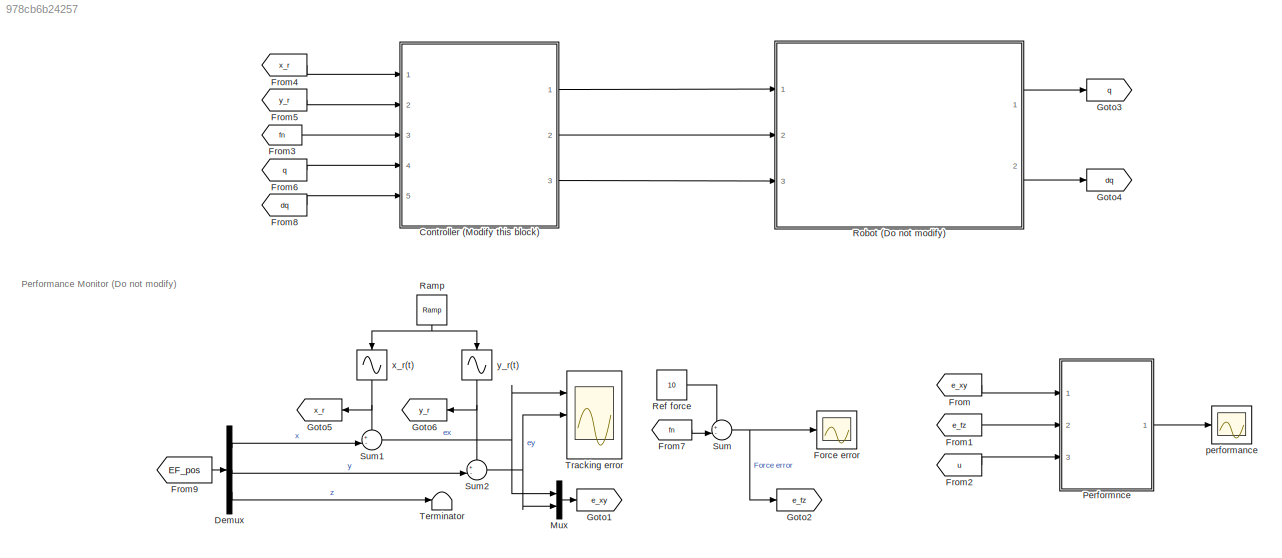
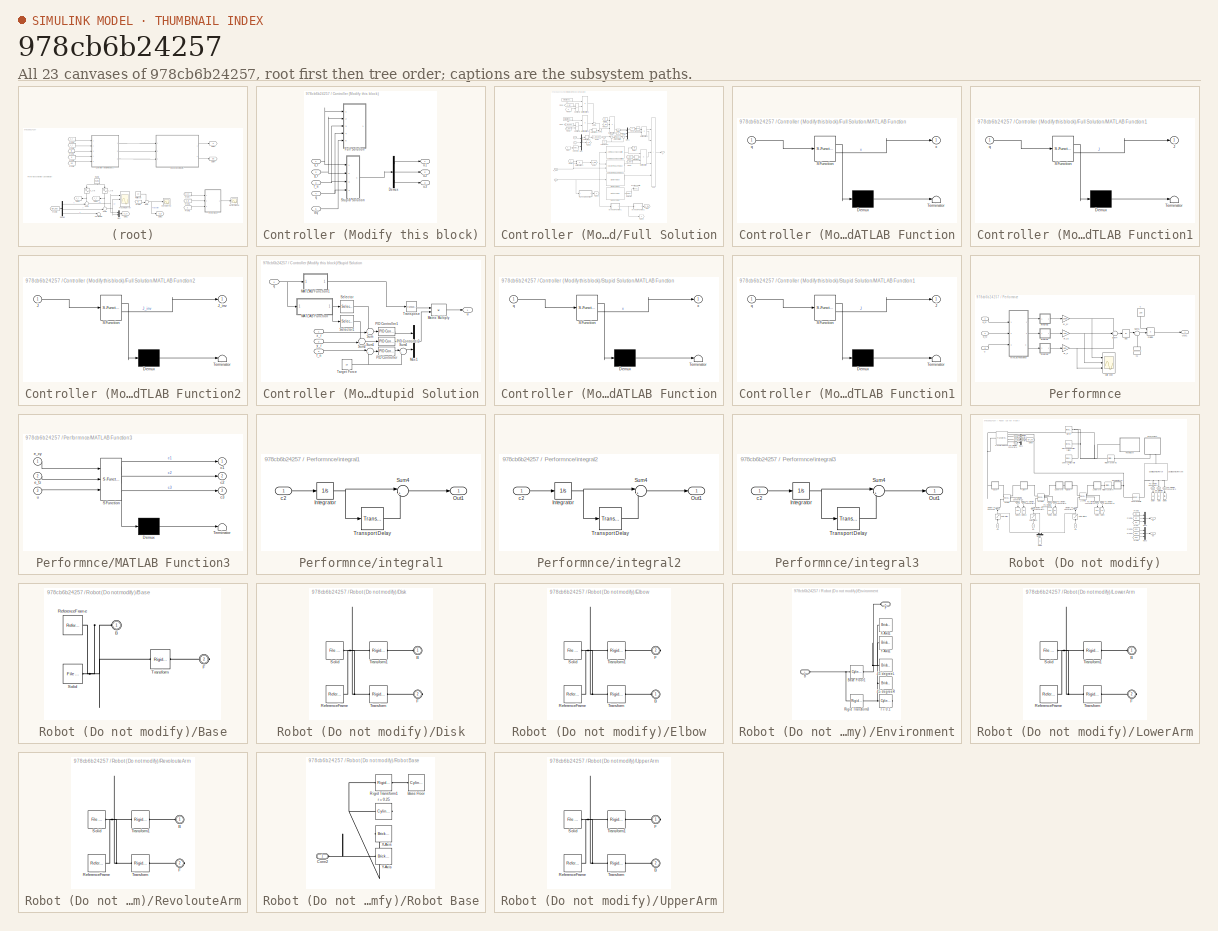
[diagram: thumbnail index - all 23 canvases of the model, root first then tree order]
MODEL slx_978cb6b24257
KIND model
CONFIG AbsTol = auto
CONFIG EnableMultiTasking = off
CONFIG FixedStep = auto
CONFIG InitFcn = QArm_DataFile
CONFIG MaxStep = .01
CONFIG MinStep = auto
CONFIG RelTol = 1e-3
CONFIG SampleTimeConstraint = Unconstrained
CONFIG SolverName = VariableStepAuto
CONFIG StartTime = 0.0
CONFIG StopTime = 60
WORKSPACE source: external: MATLAB File  (data not in archive)
BLOCK [SubSystem] Controller (Modify this block)
  Ports = [5, 3]
  RequestExecContextInheritance = off
BLOCK [Demux] Controller (Modify this block)/Demux
  Outputs = 3
  Ports = [1, 3]
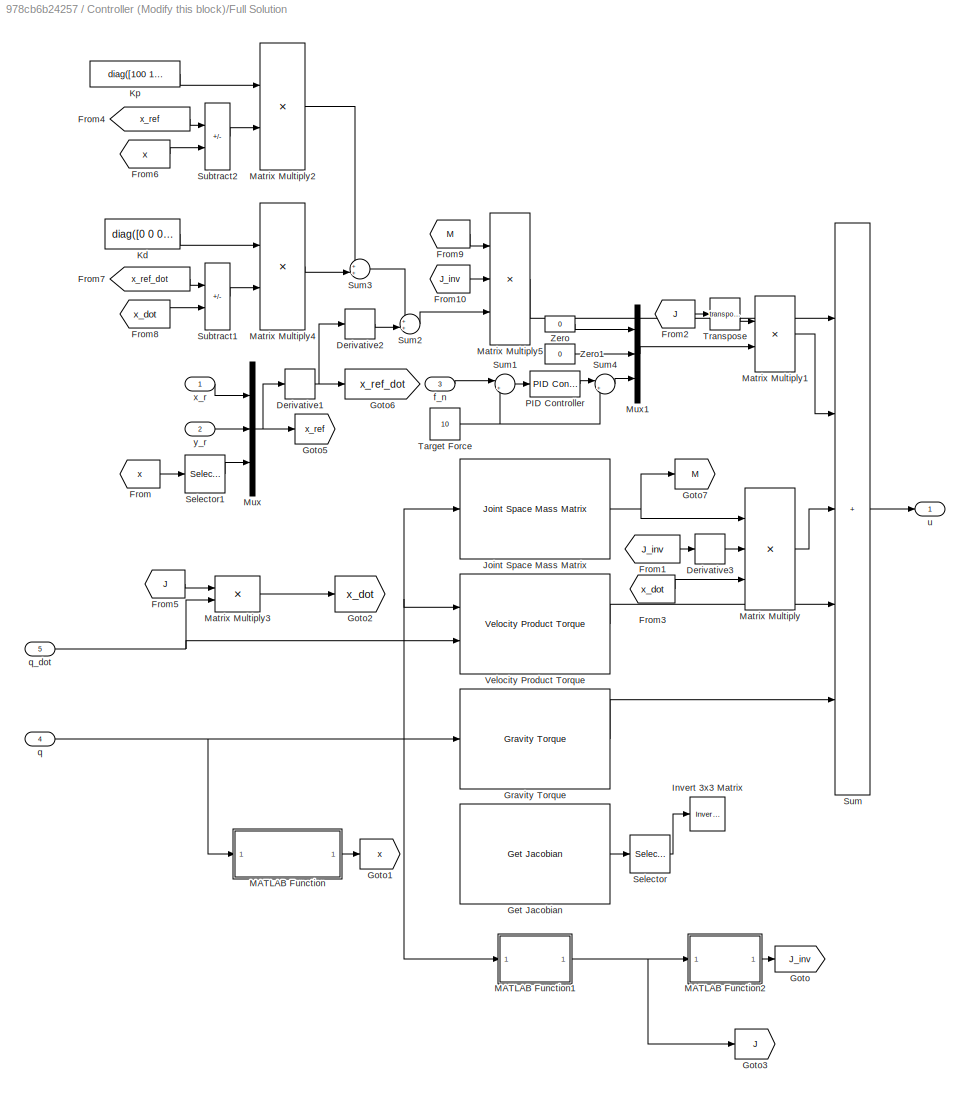
BLOCK [SubSystem] Controller (Modify this block)/Full Solution
  Commented = on
  Ports = [5, 1]
  RequestExecContextInheritance = off
BLOCK [Derivative] Controller (Modify this block)/Full Solution/Derivative1
BLOCK [Derivative] Controller (Modify this block)/Full Solution/Derivative2
BLOCK [Derivative] Controller (Modify this block)/Full Solution/Derivative3
BLOCK [From] Controller (Modify this block)/Full Solution/From
  GotoTag = x
BLOCK [From] Controller (Modify this block)/Full Solution/From1
  GotoTag = J_inv
BLOCK [From] Controller (Modify this block)/Full Solution/From10
  GotoTag = J_inv
BLOCK [From] Controller (Modify this block)/Full Solution/From2
  GotoTag = J
BLOCK [From] Controller (Modify this block)/Full Solution/From3
  GotoTag = x_dot
BLOCK [From] Controller (Modify this block)/Full Solution/From4
  GotoTag = x_ref
BLOCK [From] Controller (Modify this block)/Full Solution/From5
  GotoTag = J
BLOCK [From] Controller (Modify this block)/Full Solution/From6
  GotoTag = x
BLOCK [From] Controller (Modify this block)/Full Solution/From7
  GotoTag = x_ref_dot
BLOCK [From] Controller (Modify this block)/Full Solution/From8
  GotoTag = x_dot
BLOCK [From] Controller (Modify this block)/Full Solution/From9
  GotoTag = M
BLOCK [Reference] Controller (Modify this block)/Full Solution/Get Jacobian  REF=robotmaniplib/Get Jacobian
  Commented = on
  Ports = [1, 1]
  SourceBlock = robotmaniplib/Get Jacobian
  SourceProductBaseCode = RO
  SourceType = Get Jacobian
BLOCK [Goto] Controller (Modify this block)/Full Solution/Goto
  GotoTag = J_inv
BLOCK [Goto] Controller (Modify this block)/Full Solution/Goto1
  GotoTag = x
BLOCK [Goto] Controller (Modify this block)/Full Solution/Goto2
  GotoTag = x_dot
BLOCK [Goto] Controller (Modify this block)/Full Solution/Goto3
  GotoTag = J
BLOCK [Goto] Controller (Modify this block)/Full Solution/Goto5
  GotoTag = x_ref
BLOCK [Goto] Controller (Modify this block)/Full Solution/Goto6
  GotoTag = x_ref_dot
BLOCK [Goto] Controller (Modify this block)/Full Solution/Goto7
  GotoTag = M
BLOCK [Reference] Controller (Modify this block)/Full Solution/Gravity Torque  REF=robotmaniplib/Gravity Torque
  Ports = [1, 1]
  SourceBlock = robotmaniplib/Gravity Torque
  SourceProductBaseCode = RO
  SourceType = Gravity Torque
BLOCK [Reference] Controller (Modify this block)/Full Solution/Invert 3x3 Matrix  REF=aerolibutil/Invert 
3x3 Matrix
  Commented = on
  Ports = [1, 1]
  SourceBlock = aerolibutil/Invert \n3x3 Matrix
  SourceProductBaseCode = AE
  SourceType = Invert 3x3 Matrix
BLOCK [Reference] Controller (Modify this block)/Full Solution/Joint Space Mass Matrix  REF=robotmaniplib/Joint Space Mass Matrix
  Ports = [1, 1]
  SourceBlock = robotmaniplib/Joint Space Mass Matrix
  SourceProductBaseCode = RO
  SourceType = Joint Space Mass Matrix
BLOCK [Constant] Controller (Modify this block)/Full Solution/Kd
  Value = diag([0 0 0])
BLOCK [Constant] Controller (Modify this block)/Full Solution/Kp
  Value = diag([100 100 0])
BLOCK [SubSystem] Controller (Modify this block)/Full Solution/MATLAB Function
  ErrorFcn = Stateflow.Translate.translate
  PermitHierarchicalResolution = ExplicitOnly
  Ports = [1, 1]
  RequestExecContextInheritance = off
  SFBlockType = MATLAB Function
  TreatAsAtomicUnit = on
BLOCK [Demux] Controller (Modify this block)/Full Solution/MATLAB Function/ Demux 
  Outputs = 1
  Ports = [1, 1]
BLOCK [S-Function] Controller (Modify this block)/Full Solution/MATLAB Function/ SFunction 
  EnableBusSupport = on
  FunctionName = sf_sfun
  PortCounts = [1 2]
  Ports = [1, 2]
  SFcnIsStateOwnerBlock = off
  SFunctionDeploymentMode = off
  Tag = Stateflow S-Function 2
BLOCK [Terminator] Controller (Modify this block)/Full Solution/MATLAB Function/ Terminator 
BLOCK [Inport] Controller (Modify this block)/Full Solution/MATLAB Function/q
BLOCK [Outport] Controller (Modify this block)/Full Solution/MATLAB Function/x
BLOCK [SubSystem] Controller (Modify this block)/Full Solution/MATLAB Function1
  ErrorFcn = Stateflow.Translate.translate
  PermitHierarchicalResolution = ExplicitOnly
  Ports = [1, 1]
  RequestExecContextInheritance = off
  SFBlockType = MATLAB Function
  TreatAsAtomicUnit = on
BLOCK [Demux] Controller (Modify this block)/Full Solution/MATLAB Function1/ Demux 
  Outputs = 1
  Ports = [1, 1]
BLOCK [S-Function] Controller (Modify this block)/Full Solution/MATLAB Function1/ SFunction 
  EnableBusSupport = on
  FunctionName = sf_sfun
  PortCounts = [1 2]
  Ports = [1, 2]
  SFcnIsStateOwnerBlock = off
  SFunctionDeploymentMode = off
  Tag = Stateflow S-Function 5
BLOCK [Terminator] Controller (Modify this block)/Full Solution/MATLAB Function1/ Terminator 
BLOCK [Outport] Controller (Modify this block)/Full Solution/MATLAB Function1/J
BLOCK [Inport] Controller (Modify this block)/Full Solution/MATLAB Function1/q
BLOCK [SubSystem] Controller (Modify this block)/Full Solution/MATLAB Function2
  ErrorFcn = Stateflow.Translate.translate
  PermitHierarchicalResolution = ExplicitOnly
  Ports = [1, 1]
  RequestExecContextInheritance = off
  SFBlockType = MATLAB Function
  TreatAsAtomicUnit = on
BLOCK [Demux] Controller (Modify this block)/Full Solution/MATLAB Function2/ Demux 
  Outputs = 1
  Ports = [1, 1]
BLOCK [S-Function] Controller (Modify this block)/Full Solution/MATLAB Function2/ SFunction 
  EnableBusSupport = on
  FunctionName = sf_sfun
  PortCounts = [1 2]
  Ports = [1, 2]
  SFcnIsStateOwnerBlock = off
  SFunctionDeploymentMode = off
  Tag = Stateflow S-Function 6
BLOCK [Terminator] Controller (Modify this block)/Full Solution/MATLAB Function2/ Terminator 
BLOCK [Inport] Controller (Modify this block)/Full Solution/MATLAB Function2/J
BLOCK [Outport] Controller (Modify this block)/Full Solution/MATLAB Function2/J_inv
BLOCK [Product] Controller (Modify this block)/Full Solution/Matrix Multiply
  Inputs = 3
  Multiplication = Matrix(*)
  Ports = [3, 1]
BLOCK [Product] Controller (Modify this block)/Full Solution/Matrix Multiply1
  Multiplication = Matrix(*)
  Ports = [2, 1]
BLOCK [Product] Controller (Modify this block)/Full Solution/Matrix Multiply2
  Multiplication = Matrix(*)
  Ports = [2, 1]
BLOCK [Product] Controller (Modify this block)/Full Solution/Matrix Multiply3
  Multiplication = Matrix(*)
  Ports = [2, 1]
BLOCK [Product] Controller (Modify this block)/Full Solution/Matrix Multiply4
  Multiplication = Matrix(*)
  Ports = [2, 1]
BLOCK [Product] Controller (Modify this block)/Full Solution/Matrix Multiply5
  Inputs = 3
  Multiplication = Matrix(*)
  Ports = [3, 1]
BLOCK [Mux] Controller (Modify this block)/Full Solution/Mux
  DisplayOption = bar
  Inputs = 3
  Ports = [3, 1]
BLOCK [Mux] Controller (Modify this block)/Full Solution/Mux1
  DisplayOption = bar
  Inputs = 3
  Ports = [3, 1]
BLOCK [Reference] Controller (Modify this block)/Full Solution/PID Controller  REF=pid_lib/PID Controller
  Ports = [1, 1]
  SourceBlock = pid_lib/PID Controller
  SourceProductBaseCode = SL
  SourceType = PID 1dof
BLOCK [Selector] Controller (Modify this block)/Full Solution/Selector
  Commented = on
  IndexOptions = Index vector (dialog),Index vector (dialog)
  Indices = [4 5 6],[1 2 3]
  InputPortWidth = 3
  NumberOfDimensions = 2
  OutputSizes = 1,1
  Ports = [1, 1]
BLOCK [Selector] Controller (Modify this block)/Full Solution/Selector1
  IndexOptions = Index vector (dialog)
  Indices = [3]
  InputPortWidth = 3
  OutputSizes = 1
  Ports = [1, 1]
BLOCK [Sum] Controller (Modify this block)/Full Solution/Subtract1
  IconShape = rectangular
  Inputs = +-
  Ports = [2, 1]
BLOCK [Sum] Controller (Modify this block)/Full Solution/Subtract2
  IconShape = rectangular
  Inputs = +-
  Ports = [2, 1]
BLOCK [Sum] Controller (Modify this block)/Full Solution/Sum
  IconShape = rectangular
  Inputs = +++++
  Ports = [5, 1]
BLOCK [Sum] Controller (Modify this block)/Full Solution/Sum1
  Inputs = |+-
  Ports = [2, 1]
BLOCK [Sum] Controller (Modify this block)/Full Solution/Sum2
  Inputs = ++|
  Ports = [2, 1]
BLOCK [Sum] Controller (Modify this block)/Full Solution/Sum3
  Inputs = ++|
  Ports = [2, 1]
BLOCK [Sum] Controller (Modify this block)/Full Solution/Sum4
  Inputs = |++
  Ports = [2, 1]
BLOCK [Constant] Controller (Modify this block)/Full Solution/Target Force
  Value = 10
BLOCK [Math] Controller (Modify this block)/Full Solution/Transpose
  Operator = transpose
  Ports = [1, 1]
BLOCK [Reference] Controller (Modify this block)/Full Solution/Velocity Product Torque  REF=robotmaniplib/Velocity Product Torque
  Ports = [2, 1]
  SourceBlock = robotmaniplib/Velocity Product Torque
  SourceProductBaseCode = RO
  SourceType = Velocity Product Torque
BLOCK [Constant] Controller (Modify this block)/Full Solution/Zero
  OutDataTypeStr = Inherit: Inherit via back propagation
  Value = 0
BLOCK [Constant] Controller (Modify this block)/Full Solution/Zero1
  OutDataTypeStr = Inherit: Inherit via back propagation
  Value = 0
BLOCK [Inport] Controller (Modify this block)/Full Solution/f_n
  Port = 3
BLOCK [Inport] Controller (Modify this block)/Full Solution/q
  Port = 4
BLOCK [Inport] Controller (Modify this block)/Full Solution/q_dot
  Port = 5
BLOCK [Outport] Controller (Modify this block)/Full Solution/u
BLOCK [Inport] Controller (Modify this block)/Full Solution/x_r
BLOCK [Inport] Controller (Modify this block)/Full Solution/y_r
  Port = 2
BLOCK [SubSystem] Controller (Modify this block)/Stupid Solution
  Ports = [4, 1]
  RequestExecContextInheritance = off
BLOCK [SubSystem] Controller (Modify this block)/Stupid Solution/MATLAB Function
  ErrorFcn = Stateflow.Translate.translate
  PermitHierarchicalResolution = ExplicitOnly
  Ports = [1, 1]
  RequestExecContextInheritance = off
  SFBlockType = MATLAB Function
  TreatAsAtomicUnit = on
BLOCK [Demux] Controller (Modify this block)/Stupid Solution/MATLAB Function/ Demux 
  Outputs = 1
  Ports = [1, 1]
BLOCK [S-Function] Controller (Modify this block)/Stupid Solution/MATLAB Function/ SFunction 
  EnableBusSupport = on
  FunctionName = sf_sfun
  PortCounts = [1 2]
  Ports = [1, 2]
  SFcnIsStateOwnerBlock = off
  SFunctionDeploymentMode = off
  Tag = Stateflow S-Function 3
BLOCK [Terminator] Controller (Modify this block)/Stupid Solution/MATLAB Function/ Terminator 
BLOCK [Inport] Controller (Modify this block)/Stupid Solution/MATLAB Function/q
BLOCK [Outport] Controller (Modify this block)/Stupid Solution/MATLAB Function/x
BLOCK [SubSystem] Controller (Modify this block)/Stupid Solution/MATLAB Function1
  ErrorFcn = Stateflow.Translate.translate
  PermitHierarchicalResolution = ExplicitOnly
  Ports = [1, 1]
  RequestExecContextInheritance = off
  SFBlockType = MATLAB Function
  TreatAsAtomicUnit = on
BLOCK [Demux] Controller (Modify this block)/Stupid Solution/MATLAB Function1/ Demux 
  Outputs = 1
  Ports = [1, 1]
BLOCK [S-Function] Controller (Modify this block)/Stupid Solution/MATLAB Function1/ SFunction 
  EnableBusSupport = on
  FunctionName = sf_sfun
  PortCounts = [1 2]
  Ports = [1, 2]
  SFcnIsStateOwnerBlock = off
  SFunctionDeploymentMode = off
  Tag = Stateflow S-Function 1
BLOCK [Terminator] Controller (Modify this block)/Stupid Solution/MATLAB Function1/ Terminator 
BLOCK [Outport] Controller (Modify this block)/Stupid Solution/MATLAB Function1/J
BLOCK [Inport] Controller (Modify this block)/Stupid Solution/MATLAB Function1/q
BLOCK [Product] Controller (Modify this block)/Stupid Solution/Matrix Multiply
  Multiplication = Matrix(*)
  Ports = [2, 1]
BLOCK [Mux] Controller (Modify this block)/Stupid Solution/Mux1
  DisplayOption = bar
  Inputs = 3
  Ports = [3, 1]
BLOCK [Reference] Controller (Modify this block)/Stupid Solution/PID Controller  REF=pid_lib/PID Controller
  Ports = [1, 1]
  SourceBlock = pid_lib/PID Controller
  SourceProductBaseCode = SL
  SourceType = PID 1dof
BLOCK [Reference] Controller (Modify this block)/Stupid Solution/PID Controller1  REF=pid_lib/PID Controller
  Ports = [1, 1]
  SourceBlock = pid_lib/PID Controller
  SourceProductBaseCode = SL
  SourceType = PID 1dof
BLOCK [Reference] Controller (Modify this block)/Stupid Solution/PID Controller2  REF=pid_lib/PID Controller
  Ports = [1, 1]
  SourceBlock = pid_lib/PID Controller
  SourceProductBaseCode = SL
  SourceType = PID 1dof
BLOCK [Selector] Controller (Modify this block)/Stupid Solution/Selector
  IndexOptions = Index vector (dialog)
  Indices = [1]
  InputPortWidth = 3
  OutputSizes = 1
  Ports = [1, 1]
BLOCK [Selector] Controller (Modify this block)/Stupid Solution/Selector1
  IndexOptions = Index vector (dialog)
  Indices = [2]
  InputPortWidth = 3
  OutputSizes = 1
  Ports = [1, 1]
BLOCK [Sum] Controller (Modify this block)/Stupid Solution/Sum
  Inputs = -+|
  Ports = [2, 1]
BLOCK [Sum] Controller (Modify this block)/Stupid Solution/Sum1
  Inputs = |+-
  Ports = [2, 1]
BLOCK [Sum] Controller (Modify this block)/Stupid Solution/Sum2
  Inputs = -+|
  Ports = [2, 1]
BLOCK [Sum] Controller (Modify this block)/Stupid Solution/Sum4
  Inputs = |++
  Ports = [2, 1]
BLOCK [Constant] Controller (Modify this block)/Stupid Solution/Target Force
  Value = 10
BLOCK [Math] Controller (Modify this block)/Stupid Solution/Transpose
  Operator = transpose
  Ports = [1, 1]
BLOCK [Inport] Controller (Modify this block)/Stupid Solution/f_n
  Port = 3
BLOCK [Inport] Controller (Modify this block)/Stupid Solution/q
  Port = 4
BLOCK [Outport] Controller (Modify this block)/Stupid Solution/u
BLOCK [Inport] Controller (Modify this block)/Stupid Solution/x_r
BLOCK [Inport] Controller (Modify this block)/Stupid Solution/y_r
  Port = 2
BLOCK [Inport] Controller (Modify this block)/dq
  Port = 5
BLOCK [Inport] Controller (Modify this block)/f_n
  Port = 3
BLOCK [Inport] Controller (Modify this block)/q
  Port = 4
BLOCK [Outport] Controller (Modify this block)/u1
BLOCK [Outport] Controller (Modify this block)/u2
  Port = 2
BLOCK [Outport] Controller (Modify this block)/u3
  Port = 3
BLOCK [Inport] Controller (Modify this block)/x_r
BLOCK [Inport] Controller (Modify this block)/y_r
  Port = 2
BLOCK [Demux] Demux
  Outputs = 3
  Ports = [1, 3]
BLOCK [Scope] Force error
  Floating = off
  NumInputPorts = 1
  Ports = [1]
  ScopeSpecificationString = Simulink.scopes.TimeScopeBlockCfg('CurrentConfiguration', extmgr.ConfigurationSet(extmgr.Configuration('Core','General UI',true),extmgr.Configuration('Core','Source UI',true),extmgr.Configuration('Sources','WiredSimulink',true,'DataLoggingVariableName','ScopeData2'),extmgr.Configuration('Visuals','Time Domain',true,'SerializedDisplays',{struct('MinYLimReal','-1.53097','MaxYLimReal','0.75122','YLab...<+1492ch>
BLOCK [From] From
  GotoTag = e_xy
  TagVisibility = global
BLOCK [From] From1
  GotoTag = e_fz
  TagVisibility = global
BLOCK [From] From2
  GotoTag = u
  TagVisibility = global
BLOCK [From] From3
  GotoTag = fn
  TagVisibility = global
BLOCK [From] From4
  GotoTag = x_r
  NameLocation = top
  TagVisibility = global
BLOCK [From] From5
  GotoTag = y_r
  NameLocation = top
  TagVisibility = global
BLOCK [From] From6
  GotoTag = q
  TagVisibility = global
BLOCK [From] From7
  GotoTag = fn
  TagVisibility = global
BLOCK [From] From8
  GotoTag = dq
  TagVisibility = global
BLOCK [From] From9
  GotoTag = EF_pos
  TagVisibility = global
BLOCK [Goto] Goto1
  GotoTag = e_xy
  TagVisibility = global
BLOCK [Goto] Goto2
  GotoTag = e_fz
  TagVisibility = global
BLOCK [Goto] Goto3
  GotoTag = q
  TagVisibility = global
BLOCK [Goto] Goto4
  GotoTag = dq
  TagVisibility = global
BLOCK [Goto] Goto5
  GotoTag = x_r
  NameLocation = top
  TagVisibility = global
BLOCK [Goto] Goto6
  GotoTag = y_r
  NameLocation = top
  TagVisibility = global
BLOCK [Mux] Mux
  DisplayOption = bar
  Inputs = 2
  Ports = [2, 1]
BLOCK [SubSystem] Performnce
  Ports = [3, 1]
  RequestExecContextInheritance = off
BLOCK [Abs] Performnce/Abs
  SaturateOnIntegerOverflow = off
BLOCK [Product] Performnce/Divide
  Inputs = */
  Ports = [2, 1]
BLOCK [SubSystem] Performnce/MATLAB Function3
  ErrorFcn = Stateflow.Translate.translate
  PermitHierarchicalResolution = ExplicitOnly
  Ports = [3, 3]
  RequestExecContextInheritance = off
  SFBlockType = MATLAB Function
  TreatAsAtomicUnit = on
BLOCK [Demux] Performnce/MATLAB Function3/ Demux 
  Outputs = 1
  Ports = [1, 1]
BLOCK [S-Function] Performnce/MATLAB Function3/ SFunction 
  EnableBusSupport = on
  FunctionName = sf_sfun
  PortCounts = [3 4]
  Ports = [3, 4]
  SFcnIsStateOwnerBlock = off
  SFunctionDeploymentMode = off
  Tag = Stateflow S-Function 4
BLOCK [Terminator] Performnce/MATLAB Function3/ Terminator 
BLOCK [Outport] Performnce/MATLAB Function3/c1
BLOCK [Outport] Performnce/MATLAB Function3/c2
  Port = 2
BLOCK [Outport] Performnce/MATLAB Function3/c3
  Port = 3
BLOCK [Inport] Performnce/MATLAB Function3/e_fz
  Port = 2
BLOCK [Inport] Performnce/MATLAB Function3/e_xy
BLOCK [Inport] Performnce/MATLAB Function3/u
  Port = 3
BLOCK [Outport] Performnce/Out1
BLOCK [Sum] Performnce/Sum4
  Inputs = +++
  Ports = [3, 1]
BLOCK [Sum] Performnce/Sum5
  Inputs = |++
  Ports = [2, 1]
BLOCK [Constant] Performnce/c
  NameLocation = left
  Value = 100
BLOCK [Constant] Performnce/c1
  NameLocation = right
  Value = 0.0000001
BLOCK [Inport] Performnce/e_fz
  Port = 2
BLOCK [Inport] Performnce/e_xy
BLOCK [SubSystem] Performnce/integral1
  Ports = [1, 1]
  RequestExecContextInheritance = off
BLOCK [Integrator] Performnce/integral1/Integrator
  Ports = [1, 1]
BLOCK [Outport] Performnce/integral1/Out1
BLOCK [Sum] Performnce/integral1/Sum4
  Inputs = |+-
  Ports = [2, 1]
BLOCK [TransportDelay] Performnce/integral1/Transport Delay
  DelayTime = 2*pi
  InitialOutput = -1000
  Ports = [1, 1]
BLOCK [Inport] Performnce/integral1/c2
BLOCK [SubSystem] Performnce/integral2
  Ports = [1, 1]
  RequestExecContextInheritance = off
BLOCK [Integrator] Performnce/integral2/Integrator
  Ports = [1, 1]
BLOCK [Outport] Performnce/integral2/Out1
BLOCK [Sum] Performnce/integral2/Sum4
  Inputs = |+-
  Ports = [2, 1]
BLOCK [TransportDelay] Performnce/integral2/Transport Delay
  DelayTime = 2*pi
  InitialOutput = -1000
  Ports = [1, 1]
BLOCK [Inport] Performnce/integral2/c2
BLOCK [SubSystem] Performnce/integral3
  Ports = [1, 1]
  RequestExecContextInheritance = off
BLOCK [Integrator] Performnce/integral3/Integrator
  Ports = [1, 1]
BLOCK [Outport] Performnce/integral3/Out1
BLOCK [Sum] Performnce/integral3/Sum4
  Inputs = |+-
  Ports = [2, 1]
BLOCK [TransportDelay] Performnce/integral3/Transport Delay
  DelayTime = 2*pi
  InitialOutput = -1000
  Ports = [1, 1]
BLOCK [Inport] Performnce/integral3/c2
BLOCK [Scope] Performnce/split cost
  Floating = off
  NumInputPorts = 3
  Ports = [3]
  ScopeSpecificationString = Simulink.scopes.TimeScopeBlockCfg('CurrentConfiguration', extmgr.ConfigurationSet(extmgr.Configuration('Core','General UI',true),extmgr.Configuration('Core','Source UI',true),extmgr.Configuration('Sources','WiredSimulink',true,'DataLoggingVariableName','ScopeData1'),extmgr.Configuration('Visuals','Time Domain',true,'SerializedDisplays',{struct('MinYLimReal','-0.00026','MaxYLimReal','0.00237','YLab...<+2711ch>
BLOCK [Inport] Performnce/u
  Port = 3
BLOCK [Gain] Performnce/w_fz
  Gain = 100
BLOCK [Gain] Performnce/w_u
  Gain = 0.02
BLOCK [Gain] Performnce/w_xy
  Gain = 1000
BLOCK [Reference] Ramp  REF=simulink/Sources/Ramp
  NameLocation = left
  Ports = [0, 1]
  SourceBlock = simulink/Sources/Ramp
  SourceProductBaseCode = SL
  SourceType = Ramp
BLOCK [Constant] Ref force
  Value = 10
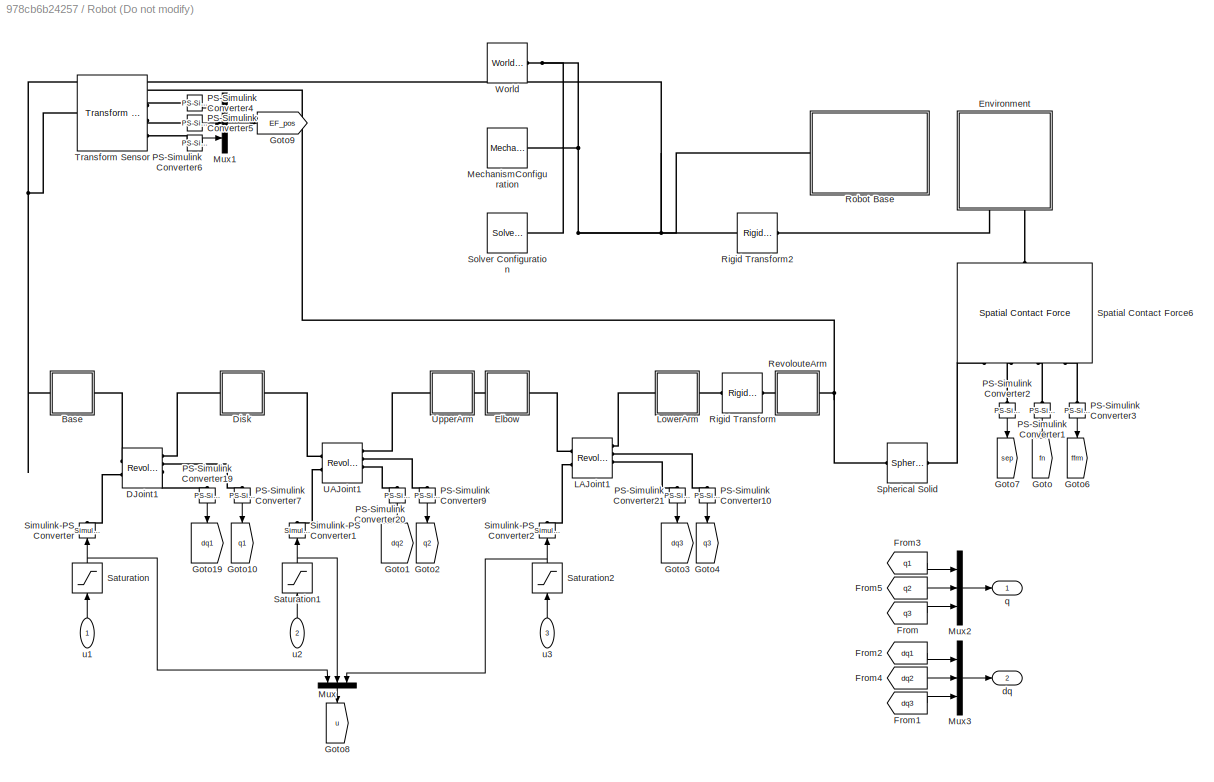
BLOCK [SubSystem] Robot (Do not modify)
  Ports = [3, 2]
  RequestExecContextInheritance = off
BLOCK [SubSystem] Robot (Do not modify)/Base
  Ports = [0, 0, 0, 0, 0, 1, 1]
  RequestExecContextInheritance = off
BLOCK [PMIOPort] Robot (Do not modify)/Base/B
  Side = Left
BLOCK [PMIOPort] Robot (Do not modify)/Base/F
  Port = 2
  Side = Right
BLOCK [Reference] Robot (Do not modify)/Base/ReferenceFrame  REF=sm_lib/Frames and
Transforms/Reference
Frame
  Ports = [0, 0, 0, 0, 0, 0, 1]
  SourceBlock = sm_lib/Frames and\nTransforms/Reference\nFrame
  SourceProductBaseCode = MS
  SourceType = Reference\nFrame
BLOCK [Reference] Robot (Do not modify)/Base/Solid  REF=sm_lib/Body Elements/File Solid
  Ports = [0, 0, 0, 0, 0, 0, 1]
  SourceBlock = sm_lib/Body Elements/File Solid
  SourceProductBaseCode = MS
  SourceType = File Solid
BLOCK [Reference] Robot (Do not modify)/Base/Transform  REF=sm_lib/Frames and
Transforms/Rigid
Transform
  Ports = [0, 0, 0, 0, 0, 1, 1]
  SourceBlock = sm_lib/Frames and\nTransforms/Rigid\nTransform
  SourceProductBaseCode = MS
  SourceType = Rigid\nTransform
BLOCK [Reference] Robot (Do not modify)/DJoint1  REF=sm_lib/Joints/Revolute Joint
  Ports = [0, 0, 0, 0, 0, 2, 4]
  SourceBlock = sm_lib/Joints/Revolute Joint
  SourceProductBaseCode = MS
  SourceType = Revolute Joint
BLOCK [SubSystem] Robot (Do not modify)/Disk
  Ports = [0, 0, 0, 0, 0, 1, 1]
  RequestExecContextInheritance = off
BLOCK [PMIOPort] Robot (Do not modify)/Disk/B
  Side = Left
BLOCK [PMIOPort] Robot (Do not modify)/Disk/F
  Port = 2
  Side = Right
BLOCK [Reference] Robot (Do not modify)/Disk/ReferenceFrame  REF=sm_lib/Frames and
Transforms/Reference
Frame
  Ports = [0, 0, 0, 0, 0, 0, 1]
  SourceBlock = sm_lib/Frames and\nTransforms/Reference\nFrame
  SourceProductBaseCode = MS
  SourceType = Reference\nFrame
BLOCK [Reference] Robot (Do not modify)/Disk/Solid  REF=sm_lib/Body Elements/File Solid
  Ports = [0, 0, 0, 0, 0, 0, 1]
  SourceBlock = sm_lib/Body Elements/File Solid
  SourceProductBaseCode = MS
  SourceType = File Solid
BLOCK [Reference] Robot (Do not modify)/Disk/Transform  REF=sm_lib/Frames and
Transforms/Rigid
Transform
  Ports = [0, 0, 0, 0, 0, 1, 1]
  SourceBlock = sm_lib/Frames and\nTransforms/Rigid\nTransform
  SourceProductBaseCode = MS
  SourceType = Rigid\nTransform
BLOCK [Reference] Robot (Do not modify)/Disk/Transform1  REF=sm_lib/Frames and
Transforms/Rigid
Transform
  Ports = [0, 0, 0, 0, 0, 1, 1]
  SourceBlock = sm_lib/Frames and\nTransforms/Rigid\nTransform
  SourceProductBaseCode = MS
  SourceType = Rigid\nTransform
BLOCK [SubSystem] Robot (Do not modify)/Elbow
  Ports = [0, 0, 0, 0, 0, 1, 1]
  RequestExecContextInheritance = off
BLOCK [PMIOPort] Robot (Do not modify)/Elbow/B
  Side = Left
BLOCK [PMIOPort] Robot (Do not modify)/Elbow/F
  Port = 2
  Side = Right
BLOCK [Reference] Robot (Do not modify)/Elbow/ReferenceFrame  REF=sm_lib/Frames and
Transforms/Reference
Frame
  Ports = [0, 0, 0, 0, 0, 0, 1]
  SourceBlock = sm_lib/Frames and\nTransforms/Reference\nFrame
  SourceProductBaseCode = MS
  SourceType = Reference\nFrame
BLOCK [Reference] Robot (Do not modify)/Elbow/Solid  REF=sm_lib/Body Elements/File Solid
  Ports = [0, 0, 0, 0, 0, 0, 1]
  SourceBlock = sm_lib/Body Elements/File Solid
  SourceProductBaseCode = MS
  SourceType = File Solid
BLOCK [Reference] Robot (Do not modify)/Elbow/Transform  REF=sm_lib/Frames and
Transforms/Rigid
Transform
  Ports = [0, 0, 0, 0, 0, 1, 1]
  SourceBlock = sm_lib/Frames and\nTransforms/Rigid\nTransform
  SourceProductBaseCode = MS
  SourceType = Rigid\nTransform
BLOCK [Reference] Robot (Do not modify)/Elbow/Transform1  REF=sm_lib/Frames and
Transforms/Rigid
Transform
  Ports = [0, 0, 0, 0, 0, 1, 1]
  SourceBlock = sm_lib/Frames and\nTransforms/Rigid\nTransform
  SourceProductBaseCode = MS
  SourceType = Rigid\nTransform
BLOCK [SubSystem] Robot (Do not modify)/Environment
  NameLocation = right
  Ports = [0, 0, 0, 0, 0, 2]
  RequestExecContextInheritance = off
BLOCK [Reference] Robot (Do not modify)/Environment/45 degreeL  REF=sm_lib/Body Elements/Brick Solid
  Ports = [0, 0, 0, 0, 0, 0, 1]
  SourceBlock = sm_lib/Body Elements/Brick Solid
  SourceProductBaseCode = MS
  SourceType = Brick Solid
BLOCK [Reference] Robot (Do not modify)/Environment/45 degreeR  REF=sm_lib/Body Elements/Brick Solid
  Ports = [0, 0, 0, 0, 0, 0, 1]
  SourceBlock = sm_lib/Body Elements/Brick Solid
  SourceProductBaseCode = MS
  SourceType = Brick Solid
BLOCK [PMIOPort] Robot (Do not modify)/Environment/B
  Side = Left
BLOCK [Reference] Robot (Do not modify)/Environment/Base Floor1  REF=sm_lib/Body Elements/Cylindrical Solid
  NameLocation = top
  Ports = [0, 0, 0, 0, 0, 1, 1]
  SourceBlock = sm_lib/Body Elements/Cylindrical Solid
  SourceProductBaseCode = MS
  SourceType = Cylindrical Solid
BLOCK [PMIOPort] Robot (Do not modify)/Environment/F
  Port = 2
  Side = Left
BLOCK [Reference] Robot (Do not modify)/Environment/Rigid Transform3  REF=sm_lib/Frames and
Transforms/Rigid
Transform
  Ports = [0, 0, 0, 0, 0, 1, 1]
  SourceBlock = sm_lib/Frames and\nTransforms/Rigid\nTransform
  SourceProductBaseCode = MS
  SourceType = Rigid\nTransform
BLOCK [Reference] Robot (Do not modify)/Environment/X-Axis1  REF=sm_lib/Body Elements/Brick Solid
  Ports = [0, 0, 0, 0, 0, 0, 1]
  SourceBlock = sm_lib/Body Elements/Brick Solid
  SourceProductBaseCode = MS
  SourceType = Brick Solid
BLOCK [Reference] Robot (Do not modify)/Environment/Y-Axis1  REF=sm_lib/Body Elements/Brick Solid
  Ports = [0, 0, 0, 0, 0, 0, 1]
  SourceBlock = sm_lib/Body Elements/Brick Solid
  SourceProductBaseCode = MS
  SourceType = Brick Solid
BLOCK [Reference] Robot (Do not modify)/Environment/r = 0.1  REF=Multibody_Parts_Lib/Basic/Cylinder
  Ports = [0, 0, 0, 0, 0, 0, 1]
  SourceBlock = Multibody_Parts_Lib/Basic/Cylinder
  SourceProductName = Simscape Multibody Parts Library
  SourceType = Cylinder with Hole
BLOCK [From] Robot (Do not modify)/From
  GotoTag = q3
BLOCK [From] Robot (Do not modify)/From1
  GotoTag = dq3
BLOCK [From] Robot (Do not modify)/From2
  GotoTag = dq1
BLOCK [From] Robot (Do not modify)/From3
  GotoTag = q1
BLOCK [From] Robot (Do not modify)/From4
  GotoTag = dq2
BLOCK [From] Robot (Do not modify)/From5
  GotoTag = q2
BLOCK [Goto] Robot (Do not modify)/Goto
  GotoTag = fn
  NameLocation = left
  TagVisibility = global
BLOCK [Goto] Robot (Do not modify)/Goto1
  GotoTag = dq2
  NameLocation = left
BLOCK [Goto] Robot (Do not modify)/Goto10
  GotoTag = q1
  NameLocation = left
BLOCK [Goto] Robot (Do not modify)/Goto19
  GotoTag = dq1
  NameLocation = left
BLOCK [Goto] Robot (Do not modify)/Goto2
  GotoTag = q2
  NameLocation = left
BLOCK [Goto] Robot (Do not modify)/Goto3
  GotoTag = dq3
  NameLocation = left
BLOCK [Goto] Robot (Do not modify)/Goto4
  GotoTag = q3
  NameLocation = left
BLOCK [Goto] Robot (Do not modify)/Goto6
  GotoTag = ffrm
  NameLocation = left
  TagVisibility = global
BLOCK [Goto] Robot (Do not modify)/Goto7
  GotoTag = sep
  NameLocation = left
  TagVisibility = global
BLOCK [Goto] Robot (Do not modify)/Goto8
  GotoTag = u
  NameLocation = left
  TagVisibility = global
BLOCK [Goto] Robot (Do not modify)/Goto9
  GotoTag = EF_pos
  TagVisibility = global
BLOCK [Reference] Robot (Do not modify)/LAJoint1  REF=sm_lib/Joints/Revolute Joint
  Ports = [0, 0, 0, 0, 0, 2, 4]
  SourceBlock = sm_lib/Joints/Revolute Joint
  SourceProductBaseCode = MS
  SourceType = Revolute Joint
BLOCK [SubSystem] Robot (Do not modify)/LowerArm
  Ports = [0, 0, 0, 0, 0, 1, 1]
  RequestExecContextInheritance = off
BLOCK [PMIOPort] Robot (Do not modify)/LowerArm/B
  Side = Left
BLOCK [PMIOPort] Robot (Do not modify)/LowerArm/F
  Port = 2
  Side = Right
BLOCK [Reference] Robot (Do not modify)/LowerArm/ReferenceFrame  REF=sm_lib/Frames and
Transforms/Reference
Frame
  Ports = [0, 0, 0, 0, 0, 0, 1]
  SourceBlock = sm_lib/Frames and\nTransforms/Reference\nFrame
  SourceProductBaseCode = MS
  SourceType = Reference\nFrame
BLOCK [Reference] Robot (Do not modify)/LowerArm/Solid  REF=sm_lib/Body Elements/File Solid
  Ports = [0, 0, 0, 0, 0, 0, 1]
  SourceBlock = sm_lib/Body Elements/File Solid
  SourceProductBaseCode = MS
  SourceType = File Solid
BLOCK [Reference] Robot (Do not modify)/LowerArm/Transform  REF=sm_lib/Frames and
Transforms/Rigid
Transform
  Ports = [0, 0, 0, 0, 0, 1, 1]
  SourceBlock = sm_lib/Frames and\nTransforms/Rigid\nTransform
  SourceProductBaseCode = MS
  SourceType = Rigid\nTransform
BLOCK [Reference] Robot (Do not modify)/LowerArm/Transform1  REF=sm_lib/Frames and
Transforms/Rigid
Transform
  Ports = [0, 0, 0, 0, 0, 1, 1]
  SourceBlock = sm_lib/Frames and\nTransforms/Rigid\nTransform
  SourceProductBaseCode = MS
  SourceType = Rigid\nTransform
BLOCK [Reference] Robot (Do not modify)/MechanismConfiguration  REF=sm_lib/Utilities/Mechanism
Configuration
  Ports = [0, 0, 0, 0, 0, 0, 1]
  SourceBlock = sm_lib/Utilities/Mechanism\nConfiguration
  SourceProductBaseCode = MS
  SourceType = Mechanism\nConfiguration
BLOCK [Mux] Robot (Do not modify)/Mux
  DisplayOption = bar
  Inputs = 3
  NameLocation = left
  Ports = [3, 1]
BLOCK [Mux] Robot (Do not modify)/Mux1
  DisplayOption = bar
  Inputs = 3
  Ports = [3, 1]
BLOCK [Mux] Robot (Do not modify)/Mux2
  DisplayOption = bar
  Inputs = 3
  Ports = [3, 1]
BLOCK [Mux] Robot (Do not modify)/Mux3
  DisplayOption = bar
  Inputs = 3
  Ports = [3, 1]
BLOCK [Reference] Robot (Do not modify)/PS-Simulink Converter1  REF=nesl_utility/PS-Simulink
Converter
  NameLocation = left
  Ports = [0, 1, 0, 0, 0, 1]
  SourceBlock = nesl_utility/PS-Simulink\nConverter
  SourceProductBaseCode = PW,SS
  SourceType = PS-Simulink\nConverter
BLOCK [Reference] Robot (Do not modify)/PS-Simulink Converter10  REF=nesl_utility/PS-Simulink
Converter
  NameLocation = left
  Ports = [0, 1, 0, 0, 0, 1]
  SourceBlock = nesl_utility/PS-Simulink\nConverter
  SourceProductBaseCode = PW,SS
  SourceType = PS-Simulink\nConverter
BLOCK [Reference] Robot (Do not modify)/PS-Simulink Converter19  REF=nesl_utility/PS-Simulink
Converter
  NameLocation = left
  Ports = [0, 1, 0, 0, 0, 1]
  SourceBlock = nesl_utility/PS-Simulink\nConverter
  SourceProductBaseCode = PW,SS
  SourceType = PS-Simulink\nConverter
BLOCK [Reference] Robot (Do not modify)/PS-Simulink Converter2  REF=nesl_utility/PS-Simulink
Converter
  NameLocation = left
  Ports = [0, 1, 0, 0, 0, 1]
  SourceBlock = nesl_utility/PS-Simulink\nConverter
  SourceProductBaseCode = PW,SS
  SourceType = PS-Simulink\nConverter
BLOCK [Reference] Robot (Do not modify)/PS-Simulink Converter20  REF=nesl_utility/PS-Simulink
Converter
  NameLocation = left
  Ports = [0, 1, 0, 0, 0, 1]
  SourceBlock = nesl_utility/PS-Simulink\nConverter
  SourceProductBaseCode = PW,SS
  SourceType = PS-Simulink\nConverter
BLOCK [Reference] Robot (Do not modify)/PS-Simulink Converter21  REF=nesl_utility/PS-Simulink
Converter
  NameLocation = left
  Ports = [0, 1, 0, 0, 0, 1]
  SourceBlock = nesl_utility/PS-Simulink\nConverter
  SourceProductBaseCode = PW,SS
  SourceType = PS-Simulink\nConverter
BLOCK [Reference] Robot (Do not modify)/PS-Simulink Converter3  REF=nesl_utility/PS-Simulink
Converter
  NameLocation = left
  Ports = [0, 1, 0, 0, 0, 1]
  SourceBlock = nesl_utility/PS-Simulink\nConverter
  SourceProductBaseCode = PW,SS
  SourceType = PS-Simulink\nConverter
BLOCK [Reference] Robot (Do not modify)/PS-Simulink Converter4  REF=nesl_utility/PS-Simulink
Converter
  Ports = [0, 1, 0, 0, 0, 1]
  SourceBlock = nesl_utility/PS-Simulink\nConverter
  SourceProductBaseCode = PW,SS
  SourceType = PS-Simulink\nConverter
BLOCK [Reference] Robot (Do not modify)/PS-Simulink Converter5  REF=nesl_utility/PS-Simulink
Converter
  Ports = [0, 1, 0, 0, 0, 1]
  SourceBlock = nesl_utility/PS-Simulink\nConverter
  SourceProductBaseCode = PW,SS
  SourceType = PS-Simulink\nConverter
BLOCK [Reference] Robot (Do not modify)/PS-Simulink Converter6  REF=nesl_utility/PS-Simulink
Converter
  Ports = [0, 1, 0, 0, 0, 1]
  SourceBlock = nesl_utility/PS-Simulink\nConverter
  SourceProductBaseCode = PW,SS
  SourceType = PS-Simulink\nConverter
BLOCK [Reference] Robot (Do not modify)/PS-Simulink Converter7  REF=nesl_utility/PS-Simulink
Converter
  NameLocation = left
  Ports = [0, 1, 0, 0, 0, 1]
  SourceBlock = nesl_utility/PS-Simulink\nConverter
  SourceProductBaseCode = PW,SS
  SourceType = PS-Simulink\nConverter
BLOCK [Reference] Robot (Do not modify)/PS-Simulink Converter9  REF=nesl_utility/PS-Simulink
Converter
  NameLocation = left
  Ports = [0, 1, 0, 0, 0, 1]
  SourceBlock = nesl_utility/PS-Simulink\nConverter
  SourceProductBaseCode = PW,SS
  SourceType = PS-Simulink\nConverter
BLOCK [SubSystem] Robot (Do not modify)/RevolouteArm
  Ports = [0, 0, 0, 0, 0, 1, 1]
  RequestExecContextInheritance = off
BLOCK [PMIOPort] Robot (Do not modify)/RevolouteArm/B
  Side = Left
BLOCK [PMIOPort] Robot (Do not modify)/RevolouteArm/F
  Port = 2
  Side = Right
BLOCK [Reference] Robot (Do not modify)/RevolouteArm/ReferenceFrame  REF=sm_lib/Frames and
Transforms/Reference
Frame
  Ports = [0, 0, 0, 0, 0, 0, 1]
  SourceBlock = sm_lib/Frames and\nTransforms/Reference\nFrame
  SourceProductBaseCode = MS
  SourceType = Reference\nFrame
BLOCK [Reference] Robot (Do not modify)/RevolouteArm/Solid  REF=sm_lib/Body Elements/File Solid
  Ports = [0, 0, 0, 0, 0, 0, 1]
  SourceBlock = sm_lib/Body Elements/File Solid
  SourceProductBaseCode = MS
  SourceType = File Solid
BLOCK [Reference] Robot (Do not modify)/RevolouteArm/Transform  REF=sm_lib/Frames and
Transforms/Rigid
Transform
  Ports = [0, 0, 0, 0, 0, 1, 1]
  SourceBlock = sm_lib/Frames and\nTransforms/Rigid\nTransform
  SourceProductBaseCode = MS
  SourceType = Rigid\nTransform
BLOCK [Reference] Robot (Do not modify)/RevolouteArm/Transform1  REF=sm_lib/Frames and
Transforms/Rigid
Transform
  Ports = [0, 0, 0, 0, 0, 1, 1]
  SourceBlock = sm_lib/Frames and\nTransforms/Rigid\nTransform
  SourceProductBaseCode = MS
  SourceType = Rigid\nTransform
BLOCK [Reference] Robot (Do not modify)/Rigid Transform  REF=sm_lib/Frames and
Transforms/Rigid
Transform
  Ports = [0, 0, 0, 0, 0, 1, 1]
  SourceBlock = sm_lib/Frames and\nTransforms/Rigid\nTransform
  SourceProductBaseCode = MS
  SourceType = Rigid\nTransform
BLOCK [Reference] Robot (Do not modify)/Rigid Transform2  REF=sm_lib/Frames and
Transforms/Rigid
Transform
  Ports = [0, 0, 0, 0, 0, 1, 1]
  SourceBlock = sm_lib/Frames and\nTransforms/Rigid\nTransform
  SourceProductBaseCode = MS
  SourceType = Rigid\nTransform
BLOCK [SubSystem] Robot (Do not modify)/Robot Base
  Ports = [0, 0, 0, 0, 0, 1]
  RequestExecContextInheritance = off
BLOCK [Reference] Robot (Do not modify)/Robot Base/Base Floor  REF=sm_lib/Body Elements/Cylindrical Solid
  NameLocation = top
  Ports = [0, 0, 0, 0, 0, 1, 1]
  SourceBlock = sm_lib/Body Elements/Cylindrical Solid
  SourceProductBaseCode = MS
  SourceType = Cylindrical Solid
BLOCK [PMIOPort] Robot (Do not modify)/Robot Base/Conn2
  Side = Left
BLOCK [Reference] Robot (Do not modify)/Robot Base/Rigid Transform1  REF=sm_lib/Frames and
Transforms/Rigid
Transform
  Ports = [0, 0, 0, 0, 0, 1, 1]
  SourceBlock = sm_lib/Frames and\nTransforms/Rigid\nTransform
  SourceProductBaseCode = MS
  SourceType = Rigid\nTransform
BLOCK [Reference] Robot (Do not modify)/Robot Base/X-Axis  REF=sm_lib/Body Elements/Brick Solid
  Ports = [0, 0, 0, 0, 0, 0, 1]
  SourceBlock = sm_lib/Body Elements/Brick Solid
  SourceProductBaseCode = MS
  SourceType = Brick Solid
BLOCK [Reference] Robot (Do not modify)/Robot Base/Y-Axis  REF=sm_lib/Body Elements/Brick Solid
  Ports = [0, 0, 0, 0, 0, 0, 1]
  SourceBlock = sm_lib/Body Elements/Brick Solid
  SourceProductBaseCode = MS
  SourceType = Brick Solid
BLOCK [Reference] Robot (Do not modify)/Robot Base/r = 0.25  REF=Multibody_Parts_Lib/Basic/Cylinder
  Ports = [0, 0, 0, 0, 0, 0, 1]
  SourceBlock = Multibody_Parts_Lib/Basic/Cylinder
  SourceProductName = Simscape Multibody Parts Library
  SourceType = Cylinder with Hole
BLOCK [Saturate] Robot (Do not modify)/Saturation
  LowerLimit = -5
  NameLocation = right
  UpperLimit = 5
BLOCK [Saturate] Robot (Do not modify)/Saturation1
  LowerLimit = -5
  NameLocation = right
  UpperLimit = 5
BLOCK [Saturate] Robot (Do not modify)/Saturation2
  LowerLimit = -5
  NameLocation = right
  UpperLimit = 5
BLOCK [Reference] Robot (Do not modify)/Simulink-PS Converter  REF=nesl_utility/Simulink-PS
Converter
  NameLocation = right
  Ports = [1, 0, 0, 0, 0, 0, 1]
  SourceBlock = nesl_utility/Simulink-PS\nConverter
  SourceProductBaseCode = PW,SS
  SourceType = Simulink-PS\nConverter
BLOCK [Reference] Robot (Do not modify)/Simulink-PS Converter1  REF=nesl_utility/Simulink-PS
Converter
  NameLocation = right
  Ports = [1, 0, 0, 0, 0, 0, 1]
  SourceBlock = nesl_utility/Simulink-PS\nConverter
  SourceProductBaseCode = PW,SS
  SourceType = Simulink-PS\nConverter
BLOCK [Reference] Robot (Do not modify)/Simulink-PS Converter2  REF=nesl_utility/Simulink-PS
Converter
  NameLocation = right
  Ports = [1, 0, 0, 0, 0, 0, 1]
  SourceBlock = nesl_utility/Simulink-PS\nConverter
  SourceProductBaseCode = PW,SS
  SourceType = Simulink-PS\nConverter
BLOCK [Reference] Robot (Do not modify)/Solver Configuration  REF=nesl_utility/Solver
Configuration
  Ports = [0, 0, 0, 0, 0, 0, 1]
  SourceBlock = nesl_utility/Solver\nConfiguration
  SourceProductBaseCode = PW,SS
  SourceType = Solver\nConfiguration
BLOCK [Reference] Robot (Do not modify)/Spatial Contact Force6  REF=sm_lib/Forces and
Torques/Spatial
Contact Force
  NameLocation = left
  Ports = [0, 0, 0, 0, 0, 1, 4]
  SourceBlock = sm_lib/Forces and\nTorques/Spatial\nContact Force
  SourceProductBaseCode = MS
  SourceType = Spatial\nContact Force
BLOCK [Reference] Robot (Do not modify)/Spherical Solid  REF=sm_lib/Body Elements/Spherical Solid
  NameLocation = top
  Ports = [0, 0, 0, 0, 0, 1, 1]
  SourceBlock = sm_lib/Body Elements/Spherical Solid
  SourceProductBaseCode = MS
  SourceType = Spherical Solid
BLOCK [Reference] Robot (Do not modify)/Transform Sensor  REF=sm_lib/Frames and
Transforms/Transform
Sensor
  Ports = [0, 0, 0, 0, 0, 1, 4]
  SourceBlock = sm_lib/Frames and\nTransforms/Transform\nSensor
  SourceProductBaseCode = MS
  SourceType = Transform\nSensor
BLOCK [Reference] Robot (Do not modify)/UAJoint1  REF=sm_lib/Joints/Revolute Joint
  Ports = [0, 0, 0, 0, 0, 2, 4]
  SourceBlock = sm_lib/Joints/Revolute Joint
  SourceProductBaseCode = MS
  SourceType = Revolute Joint
BLOCK [SubSystem] Robot (Do not modify)/UpperArm
  Ports = [0, 0, 0, 0, 0, 1, 1]
  RequestExecContextInheritance = off
BLOCK [PMIOPort] Robot (Do not modify)/UpperArm/B
  Port = 2
  Side = Left
BLOCK [PMIOPort] Robot (Do not modify)/UpperArm/F
  Side = Right
BLOCK [Reference] Robot (Do not modify)/UpperArm/ReferenceFrame  REF=sm_lib/Frames and
Transforms/Reference
Frame
  Ports = [0, 0, 0, 0, 0, 0, 1]
  SourceBlock = sm_lib/Frames and\nTransforms/Reference\nFrame
  SourceProductBaseCode = MS
  SourceType = Reference\nFrame
BLOCK [Reference] Robot (Do not modify)/UpperArm/Solid  REF=sm_lib/Body Elements/File Solid
  Ports = [0, 0, 0, 0, 0, 0, 1]
  SourceBlock = sm_lib/Body Elements/File Solid
  SourceProductBaseCode = MS
  SourceType = File Solid
BLOCK [Reference] Robot (Do not modify)/UpperArm/Transform  REF=sm_lib/Frames and
Transforms/Rigid
Transform
  Ports = [0, 0, 0, 0, 0, 1, 1]
  SourceBlock = sm_lib/Frames and\nTransforms/Rigid\nTransform
  SourceProductBaseCode = MS
  SourceType = Rigid\nTransform
BLOCK [Reference] Robot (Do not modify)/UpperArm/Transform1  REF=sm_lib/Frames and
Transforms/Rigid
Transform
  Ports = [0, 0, 0, 0, 0, 1, 1]
  SourceBlock = sm_lib/Frames and\nTransforms/Rigid\nTransform
  SourceProductBaseCode = MS
  SourceType = Rigid\nTransform
BLOCK [Reference] Robot (Do not modify)/World  REF=sm_lib/Frames and
Transforms/World Frame
  Ports = [0, 0, 0, 0, 0, 0, 1]
  SourceBlock = sm_lib/Frames and\nTransforms/World Frame
  SourceProductBaseCode = MS
  SourceType = World Frame
BLOCK [Outport] Robot (Do not modify)/dq
  Port = 2
BLOCK [Outport] Robot (Do not modify)/q
BLOCK [Inport] Robot (Do not modify)/u1
  NameLocation = right
BLOCK [Inport] Robot (Do not modify)/u2
  NameLocation = right
  Port = 2
BLOCK [Inport] Robot (Do not modify)/u3
  NameLocation = right
  Port = 3
BLOCK [Sum] Sum
  Inputs = +-|
  Ports = [2, 1]
BLOCK [Sum] Sum1
  Inputs = +-|
  Ports = [2, 1]
BLOCK [Sum] Sum2
  Inputs = +-|
  Ports = [2, 1]
BLOCK [Terminator] Terminator
BLOCK [Scope] Tracking error
  Floating = off
  NumInputPorts = 3
  Ports = [3]
  ScopeSpecificationString = Simulink.scopes.TimeScopeBlockCfg('CurrentConfiguration', extmgr.ConfigurationSet(extmgr.Configuration('Core','General UI',true),extmgr.Configuration('Core','Source UI',true),extmgr.Configuration('Sources','WiredSimulink',true),extmgr.Configuration('Visuals','Time Domain',true,'SerializedDisplays',{struct('MinYLimReal','-0.4322','MaxYLimReal','0.32471','YLabelReal','','MinYLimMag','0.00000','MaxYL...<+2669ch>
BLOCK [Scope] performance
  Floating = off
  NumInputPorts = 1
  Ports = [1]
  ScopeSpecificationString = Simulink.scopes.TimeScopeBlockCfg('CurrentConfiguration', extmgr.ConfigurationSet(extmgr.Configuration('Core','General UI',true),extmgr.Configuration('Core','Source UI',true),extmgr.Configuration('Sources','WiredSimulink',true,'DataLoggingVariableName','ScopeData2'),extmgr.Configuration('Visuals','Time Domain',true,'SerializedDisplays',{struct('MinYLimReal','-0.05108','MaxYLimReal','0.4606','YLabe...<+1498ch>
BLOCK [Sin] x_r(t)
  Amplitude = .15
  Bias = .4
  NameLocation = left
  Phase = pi/2
  Ports = [1, 1]
  SampleTime = 0
  TimeSource = Use external signal
BLOCK [Sin] y_r(t)
  Amplitude = .15
  NameLocation = left
  Ports = [1, 1]
  SampleTime = 0
  TimeSource = Use external signal
ANNOTATION (root): Performance Monitor (Do not modify)
LINE Controller (Modify this block)/Demux:1 -> Controller (Modify this block)/u1:1
LINE Controller (Modify this block)/Demux:2 -> Controller (Modify this block)/u2:1
LINE Controller (Modify this block)/Demux:3 -> Controller (Modify this block)/u3:1
NET Controller (Modify this block)/Full Solution/Derivative1:1 -> Controller (Modify this block)/Full Solution/Derivative2:1, Controller (Modify this block)/Full Solution/Goto6:1
LINE Controller (Modify this block)/Full Solution/Derivative2:1 -> Controller (Modify this block)/Full Solution/Sum2:2
LINE Controller (Modify this block)/Full Solution/Derivative3:1 -> Controller (Modify this block)/Full Solution/Matrix Multiply:2
LINE Controller (Modify this block)/Full Solution/From10:1 -> Controller (Modify this block)/Full Solution/Matrix Multiply5:2
LINE Controller (Modify this block)/Full Solution/From1:1 -> Controller (Modify this block)/Full Solution/Derivative3:1
LINE Controller (Modify this block)/Full Solution/From2:1 -> Controller (Modify this block)/Full Solution/Transpose:1
LINE Controller (Modify this block)/Full Solution/From3:1 -> Controller (Modify this block)/Full Solution/Matrix Multiply:3
LINE Controller (Modify this block)/Full Solution/From4:1 -> Controller (Modify this block)/Full Solution/Subtract2:1
LINE Controller (Modify this block)/Full Solution/From5:1 -> Controller (Modify this block)/Full Solution/Matrix Multiply3:1
LINE Controller (Modify this block)/Full Solution/From6:1 -> Controller (Modify this block)/Full Solution/Subtract2:2
LINE Controller (Modify this block)/Full Solution/From7:1 -> Controller (Modify this block)/Full Solution/Subtract1:1
LINE Controller (Modify this block)/Full Solution/From8:1 -> Controller (Modify this block)/Full Solution/Subtract1:2
LINE Controller (Modify this block)/Full Solution/From9:1 -> Controller (Modify this block)/Full Solution/Matrix Multiply5:1
LINE Controller (Modify this block)/Full Solution/From:1 -> Controller (Modify this block)/Full Solution/Selector1:1
LINE Controller (Modify this block)/Full Solution/Get Jacobian:1 -> Controller (Modify this block)/Full Solution/Selector:1
LINE Controller (Modify this block)/Full Solution/Gravity Torque:1 -> Controller (Modify this block)/Full Solution/Sum:5
NET Controller (Modify this block)/Full Solution/Joint Space Mass Matrix:1 -> Controller (Modify this block)/Full Solution/Goto7:1, Controller (Modify this block)/Full Solution/Matrix Multiply:1
LINE Controller (Modify this block)/Full Solution/Kd:1 -> Controller (Modify this block)/Full Solution/Matrix Multiply4:1
LINE Controller (Modify this block)/Full Solution/Kp:1 -> Controller (Modify this block)/Full Solution/Matrix Multiply2:1
NET Controller (Modify this block)/Full Solution/MATLAB Function1:1 -> Controller (Modify this block)/Full Solution/Goto3:1, Controller (Modify this block)/Full Solution/MATLAB Function2:1
LINE Controller (Modify this block)/Full Solution/MATLAB Function2:1 -> Controller (Modify this block)/Full Solution/Goto:1
LINE Controller (Modify this block)/Full Solution/MATLAB Function:1 -> Controller (Modify this block)/Full Solution/Goto1:1
LINE Controller (Modify this block)/Full Solution/Matrix Multiply1:1 -> Controller (Modify this block)/Full Solution/Sum:2
LINE Controller (Modify this block)/Full Solution/Matrix Multiply2:1 -> Controller (Modify this block)/Full Solution/Sum3:1
LINE Controller (Modify this block)/Full Solution/Matrix Multiply3:1 -> Controller (Modify this block)/Full Solution/Goto2:1
LINE Controller (Modify this block)/Full Solution/Matrix Multiply4:1 -> Controller (Modify this block)/Full Solution/Sum3:2
LINE Controller (Modify this block)/Full Solution/Matrix Multiply5:1 -> Controller (Modify this block)/Full Solution/Sum:1
LINE Controller (Modify this block)/Full Solution/Matrix Multiply:1 -> Controller (Modify this block)/Full Solution/Sum:3
LINE Controller (Modify this block)/Full Solution/Mux1:1 -> Controller (Modify this block)/Full Solution/Matrix Multiply1:2
NET Controller (Modify this block)/Full Solution/Mux:1 -> Controller (Modify this block)/Full Solution/Derivative1:1, Controller (Modify this block)/Full Solution/Goto5:1
LINE Controller (Modify this block)/Full Solution/PID Controller:1 -> Controller (Modify this block)/Full Solution/Sum4:1
LINE Controller (Modify this block)/Full Solution/Selector1:1 -> Controller (Modify this block)/Full Solution/Mux:3
LINE Controller (Modify this block)/Full Solution/Selector:1 -> Controller (Modify this block)/Full Solution/Invert 3x3 Matrix:1
LINE Controller (Modify this block)/Full Solution/Subtract1:1 -> Controller (Modify this block)/Full Solution/Matrix Multiply4:2
LINE Controller (Modify this block)/Full Solution/Subtract2:1 -> Controller (Modify this block)/Full Solution/Matrix Multiply2:2
LINE Controller (Modify this block)/Full Solution/Sum1:1 -> Controller (Modify this block)/Full Solution/PID Controller:1
LINE Controller (Modify this block)/Full Solution/Sum2:1 -> Controller (Modify this block)/Full Solution/Matrix Multiply5:3
LINE Controller (Modify this block)/Full Solution/Sum3:1 -> Controller (Modify this block)/Full Solution/Sum2:1
LINE Controller (Modify this block)/Full Solution/Sum4:1 -> Controller (Modify this block)/Full Solution/Mux1:3
LINE Controller (Modify this block)/Full Solution/Sum:1 -> Controller (Modify this block)/Full Solution/u:1
NET Controller (Modify this block)/Full Solution/Target Force:1 -> Controller (Modify this block)/Full Solution/Sum1:2, Controller (Modify this block)/Full Solution/Sum4:2
LINE Controller (Modify this block)/Full Solution/Transpose:1 -> Controller (Modify this block)/Full Solution/Matrix Multiply1:1
LINE Controller (Modify this block)/Full Solution/Velocity Product Torque:1 -> Controller (Modify this block)/Full Solution/Sum:4
LINE Controller (Modify this block)/Full Solution/Zero1:1 -> Controller (Modify this block)/Full Solution/Mux1:2
LINE Controller (Modify this block)/Full Solution/Zero:1 -> Controller (Modify this block)/Full Solution/Mux1:1
LINE Controller (Modify this block)/Full Solution/f_n:1 -> Controller (Modify this block)/Full Solution/Sum1:1
NET Controller (Modify this block)/Full Solution/q:1 -> Controller (Modify this block)/Full Solution/Gravity Torque:1, Controller (Modify this block)/Full Solution/Joint Space Mass Matrix:1, Controller (Modify this block)/Full Solution/MATLAB Function1:1, Controller (Modify this block)/Full Solution/MATLAB Function:1, Controller (Modify this block)/Full Solution/Velocity Product Torque:1
NET Controller (Modify this block)/Full Solution/q_dot:1 -> Controller (Modify this block)/Full Solution/Matrix Multiply3:2, Controller (Modify this block)/Full Solution/Velocity Product Torque:2
LINE Controller (Modify this block)/Full Solution/x_r:1 -> Controller (Modify this block)/Full Solution/Mux:1
LINE Controller (Modify this block)/Full Solution/y_r:1 -> Controller (Modify this block)/Full Solution/Mux:2
LINE Controller (Modify this block)/Stupid Solution/MATLAB Function1:1 -> Controller (Modify this block)/Stupid Solution/Transpose:1
NET Controller (Modify this block)/Stupid Solution/MATLAB Function:1 -> Controller (Modify this block)/Stupid Solution/Selector1:1, Controller (Modify this block)/Stupid Solution/Selector:1
LINE Controller (Modify this block)/Stupid Solution/Matrix Multiply:1 -> Controller (Modify this block)/Stupid Solution/u:1
LINE Controller (Modify this block)/Stupid Solution/Mux1:1 -> Controller (Modify this block)/Stupid Solution/Matrix Multiply:2
LINE Controller (Modify this block)/Stupid Solution/PID Controller1:1 -> Controller (Modify this block)/Stupid Solution/Mux1:1
LINE Controller (Modify this block)/Stupid Solution/PID Controller2:1 -> Controller (Modify this block)/Stupid Solution/Mux1:2
LINE Controller (Modify this block)/Stupid Solution/PID Controller:1 -> Controller (Modify this block)/Stupid Solution/Sum4:1
LINE Controller (Modify this block)/Stupid Solution/Selector1:1 -> Controller (Modify this block)/Stupid Solution/Sum2:1
LINE Controller (Modify this block)/Stupid Solution/Selector:1 -> Controller (Modify this block)/Stupid Solution/Sum:1
LINE Controller (Modify this block)/Stupid Solution/Sum1:1 -> Controller (Modify this block)/Stupid Solution/PID Controller:1
LINE Controller (Modify this block)/Stupid Solution/Sum2:1 -> Controller (Modify this block)/Stupid Solution/PID Controller2:1
LINE Controller (Modify this block)/Stupid Solution/Sum4:1 -> Controller (Modify this block)/Stupid Solution/Mux1:3
LINE Controller (Modify this block)/Stupid Solution/Sum:1 -> Controller (Modify this block)/Stupid Solution/PID Controller1:1
NET Controller (Modify this block)/Stupid Solution/Target Force:1 -> Controller (Modify this block)/Stupid Solution/Sum1:2, Controller (Modify this block)/Stupid Solution/Sum4:2
LINE Controller (Modify this block)/Stupid Solution/Transpose:1 -> Controller (Modify this block)/Stupid Solution/Matrix Multiply:1
LINE Controller (Modify this block)/Stupid Solution/f_n:1 -> Controller (Modify this block)/Stupid Solution/Sum1:1
NET Controller (Modify this block)/Stupid Solution/q:1 -> Controller (Modify this block)/Stupid Solution/MATLAB Function1:1, Controller (Modify this block)/Stupid Solution/MATLAB Function:1
LINE Controller (Modify this block)/Stupid Solution/x_r:1 -> Controller (Modify this block)/Stupid Solution/Sum:2
LINE Controller (Modify this block)/Stupid Solution/y_r:1 -> Controller (Modify this block)/Stupid Solution/Sum2:2
LINE Controller (Modify this block)/Stupid Solution:1 -> Controller (Modify this block)/Demux:1
LINE Controller (Modify this block)/dq:1 -> Controller (Modify this block)/Full Solution:5
NET Controller (Modify this block)/f_n:1 -> Controller (Modify this block)/Full Solution:3, Controller (Modify this block)/Stupid Solution:3
NET Controller (Modify this block)/q:1 -> Controller (Modify this block)/Full Solution:4, Controller (Modify this block)/Stupid Solution:4
NET Controller (Modify this block)/x_r:1 -> Controller (Modify this block)/Full Solution:1, Controller (Modify this block)/Stupid Solution:1
NET Controller (Modify this block)/y_r:1 -> Controller (Modify this block)/Full Solution:2, Controller (Modify this block)/Stupid Solution:2
LINE Controller (Modify this block):1 -> Robot (Do not modify):1
LINE Controller (Modify this block):2 -> Robot (Do not modify):2
LINE Controller (Modify this block):3 -> Robot (Do not modify):3
LINE Demux:1 -> Sum1:2
LINE Demux:2 -> Sum2:2
LINE Demux:3 -> Terminator:1
LINE From1:1 -> Performnce:2
LINE From2:1 -> Performnce:3
LINE From3:1 -> Controller (Modify this block):3
LINE From4:1 -> Controller (Modify this block):1
LINE From5:1 -> Controller (Modify this block):2
LINE From6:1 -> Controller (Modify this block):4
LINE From7:1 -> Sum:2
LINE From8:1 -> Controller (Modify this block):5
LINE From9:1 -> Demux:1
LINE From:1 -> Performnce:1
LINE Mux:1 -> Goto1:1
LINE Performnce/Abs:1 -> Performnce/Sum5:1
LINE Performnce/Divide:1 -> Performnce/Out1:1
LINE Performnce/MATLAB Function3:1 -> Performnce/integral2:1
LINE Performnce/MATLAB Function3:2 -> Performnce/integral1:1
LINE Performnce/MATLAB Function3:3 -> Performnce/integral3:1
LINE Performnce/Sum4:1 -> Performnce/Abs:1
LINE Performnce/Sum5:1 -> Performnce/Divide:2
LINE Performnce/c1:1 -> Performnce/Sum5:2
LINE Performnce/c:1 -> Performnce/Divide:1
LINE Performnce/e_fz:1 -> Performnce/MATLAB Function3:2
LINE Performnce/e_xy:1 -> Performnce/MATLAB Function3:1
NET Performnce/integral1/Integrator:1 -> Performnce/integral1/Sum4:1, Performnce/integral1/Transport Delay:1
LINE Performnce/integral1/Sum4:1 -> Performnce/integral1/Out1:1
LINE Performnce/integral1/Transport Delay:1 -> Performnce/integral1/Sum4:2
LINE Performnce/integral1/c2:1 -> Performnce/integral1/Integrator:1
LINE Performnce/integral1:1 -> Performnce/w_fz:1
NET Performnce/integral2/Integrator:1 -> Performnce/integral2/Sum4:1, Performnce/integral2/Transport Delay:1
LINE Performnce/integral2/Sum4:1 -> Performnce/integral2/Out1:1
LINE Performnce/integral2/Transport Delay:1 -> Performnce/integral2/Sum4:2
LINE Performnce/integral2/c2:1 -> Performnce/integral2/Integrator:1
LINE Performnce/integral2:1 -> Performnce/w_xy:1
NET Performnce/integral3/Integrator:1 -> Performnce/integral3/Sum4:1, Performnce/integral3/Transport Delay:1
LINE Performnce/integral3/Sum4:1 -> Performnce/integral3/Out1:1
LINE Performnce/integral3/Transport Delay:1 -> Performnce/integral3/Sum4:2
LINE Performnce/integral3/c2:1 -> Performnce/integral3/Integrator:1
LINE Performnce/integral3:1 -> Performnce/w_u:1
LINE Performnce/u:1 -> Performnce/MATLAB Function3:3
NET Performnce/w_fz:1 -> Performnce/Sum4:2, Performnce/split cost:2
NET Performnce/w_u:1 -> Performnce/Sum4:3, Performnce/split cost:3
NET Performnce/w_xy:1 -> Performnce/Sum4:1, Performnce/split cost:1
LINE Performnce:1 -> performance:1
NET Ramp:1 -> x_r(t):1, y_r(t):1
LINE Ref force:1 -> Sum:1
LINE Robot (Do not modify)/From1:1 -> Robot (Do not modify)/Mux3:3
LINE Robot (Do not modify)/From2:1 -> Robot (Do not modify)/Mux3:1
LINE Robot (Do not modify)/From3:1 -> Robot (Do not modify)/Mux2:1
LINE Robot (Do not modify)/From4:1 -> Robot (Do not modify)/Mux3:2
LINE Robot (Do not modify)/From5:1 -> Robot (Do not modify)/Mux2:2
LINE Robot (Do not modify)/From:1 -> Robot (Do not modify)/Mux2:3
LINE Robot (Do not modify)/Mux1:1 -> Robot (Do not modify)/Goto9:1
LINE Robot (Do not modify)/Mux2:1 -> Robot (Do not modify)/q:1
LINE Robot (Do not modify)/Mux3:1 -> Robot (Do not modify)/dq:1
LINE Robot (Do not modify)/Mux:1 -> Robot (Do not modify)/Goto8:1
LINE Robot (Do not modify)/PS-Simulink Converter10:1 -> Robot (Do not modify)/Goto4:1
LINE Robot (Do not modify)/PS-Simulink Converter19:1 -> Robot (Do not modify)/Goto19:1
LINE Robot (Do not modify)/PS-Simulink Converter1:1 -> Robot (Do not modify)/Goto:1
LINE Robot (Do not modify)/PS-Simulink Converter20:1 -> Robot (Do not modify)/Goto1:1
LINE Robot (Do not modify)/PS-Simulink Converter21:1 -> Robot (Do not modify)/Goto3:1
LINE Robot (Do not modify)/PS-Simulink Converter2:1 -> Robot (Do not modify)/Goto7:1
LINE Robot (Do not modify)/PS-Simulink Converter3:1 -> Robot (Do not modify)/Goto6:1
LINE Robot (Do not modify)/PS-Simulink Converter4:1 -> Robot (Do not modify)/Mux1:1
LINE Robot (Do not modify)/PS-Simulink Converter5:1 -> Robot (Do not modify)/Mux1:2
LINE Robot (Do not modify)/PS-Simulink Converter6:1 -> Robot (Do not modify)/Mux1:3
LINE Robot (Do not modify)/PS-Simulink Converter7:1 -> Robot (Do not modify)/Goto10:1
LINE Robot (Do not modify)/PS-Simulink Converter9:1 -> Robot (Do not modify)/Goto2:1
NET Robot (Do not modify)/Saturation1:1 -> Robot (Do not modify)/Mux:2, Robot (Do not modify)/Simulink-PS Converter1:1
NET Robot (Do not modify)/Saturation2:1 -> Robot (Do not modify)/Mux:3, Robot (Do not modify)/Simulink-PS Converter2:1
NET Robot (Do not modify)/Saturation:1 -> Robot (Do not modify)/Mux:1, Robot (Do not modify)/Simulink-PS Converter:1
LINE Robot (Do not modify)/u1:1 -> Robot (Do not modify)/Saturation:1
LINE Robot (Do not modify)/u2:1 -> Robot (Do not modify)/Saturation1:1
LINE Robot (Do not modify)/u3:1 -> Robot (Do not modify)/Saturation2:1
LINE Robot (Do not modify):1 -> Goto3:1
LINE Robot (Do not modify):2 -> Goto4:1
NET Sum1:1 -> Mux:1, Tracking error:1
NET Sum2:1 -> Mux:2, Tracking error:2
NET Sum:1 -> Force error:1, Goto2:1
NET x_r(t):1 -> Goto5:1, Sum1:1
NET y_r(t):1 -> Goto6:1, Sum2:1
PNET net1: Robot (Do not modify)/Base/B:RConn1 -- Robot (Do not modify)/Base/ReferenceFrame:RConn1 -- Robot (Do not modify)/Base/Solid:RConn1 -- Robot (Do not modify)/Base/Transform:LConn1
PLINE Robot (Do not modify)/Base/F:RConn1 -- Robot (Do not modify)/Base/Transform:RConn1
PNET net2: Robot (Do not modify)/Base:LConn1 -- Robot (Do not modify)/MechanismConfiguration:RConn1 -- Robot (Do not modify)/Rigid Transform2:LConn1 -- Robot (Do not modify)/Robot Base:LConn1 -- Robot (Do not modify)/Solver Configuration:RConn1 -- Robot (Do not modify)/Transform Sensor:LConn1 -- Robot (Do not modify)/World:RConn1
PLINE Robot (Do not modify)/Base:RConn1 -- Robot (Do not modify)/DJoint1:LConn1
PLINE Robot (Do not modify)/DJoint1:LConn2 -- Robot (Do not modify)/Simulink-PS Converter:RConn1
PLINE Robot (Do not modify)/DJoint1:RConn1 -- Robot (Do not modify)/Disk:LConn1
PLINE Robot (Do not modify)/DJoint1:RConn2 -- Robot (Do not modify)/PS-Simulink Converter7:LConn1
PLINE Robot (Do not modify)/DJoint1:RConn3 -- Robot (Do not modify)/PS-Simulink Converter19:LConn1
PLINE Robot (Do not modify)/Disk/B:RConn1 -- Robot (Do not modify)/Disk/Transform1:RConn1
PLINE Robot (Do not modify)/Disk/F:RConn1 -- Robot (Do not modify)/Disk/Transform:RConn1
PNET net3: Robot (Do not modify)/Disk/ReferenceFrame:RConn1 -- Robot (Do not modify)/Disk/Solid:RConn1 -- Robot (Do not modify)/Disk/Transform1:LConn1 -- Robot (Do not modify)/Disk/Transform:LConn1
PLINE Robot (Do not modify)/Disk:RConn1 -- Robot (Do not modify)/UAJoint1:LConn1
PLINE Robot (Do not modify)/Elbow/B:RConn1 -- Robot (Do not modify)/Elbow/Transform:RConn1
PLINE Robot (Do not modify)/Elbow/F:RConn1 -- Robot (Do not modify)/Elbow/Transform1:RConn1
PNET net4: Robot (Do not modify)/Elbow/ReferenceFrame:RConn1 -- Robot (Do not modify)/Elbow/Solid:RConn1 -- Robot (Do not modify)/Elbow/Transform1:LConn1 -- Robot (Do not modify)/Elbow/Transform:LConn1
PLINE Robot (Do not modify)/Elbow:LConn1 -- Robot (Do not modify)/UpperArm:RConn1
PLINE Robot (Do not modify)/Elbow:RConn1 -- Robot (Do not modify)/LAJoint1:LConn1
PNET net5: Robot (Do not modify)/Environment/45 degreeL:RConn1 -- Robot (Do not modify)/Environment/45 degreeR:RConn1 -- Robot (Do not modify)/Environment/Rigid Transform3:RConn1 -- Robot (Do not modify)/Environment/X-Axis1:RConn1 -- Robot (Do not modify)/Environment/Y-Axis1:RConn1 -- Robot (Do not modify)/Environment/r = 0.1:RConn1
PNET net6: Robot (Do not modify)/Environment/B:RConn1 -- Robot (Do not modify)/Environment/Base Floor1:RConn1 -- Robot (Do not modify)/Environment/Rigid Transform3:LConn1
PLINE Robot (Do not modify)/Environment/Base Floor1:LConn1 -- Robot (Do not modify)/Environment/F:RConn1
PLINE Robot (Do not modify)/Environment:LConn1 -- Robot (Do not modify)/Rigid Transform2:RConn1
PLINE Robot (Do not modify)/Environment:LConn2 -- Robot (Do not modify)/Spatial Contact Force6:LConn1
PLINE Robot (Do not modify)/LAJoint1:LConn2 -- Robot (Do not modify)/Simulink-PS Converter2:RConn1
PLINE Robot (Do not modify)/LAJoint1:RConn1 -- Robot (Do not modify)/LowerArm:LConn1
PLINE Robot (Do not modify)/LAJoint1:RConn2 -- Robot (Do not modify)/PS-Simulink Converter10:LConn1
PLINE Robot (Do not modify)/LAJoint1:RConn3 -- Robot (Do not modify)/PS-Simulink Converter21:LConn1
PLINE Robot (Do not modify)/LowerArm/B:RConn1 -- Robot (Do not modify)/LowerArm/Transform1:RConn1
PLINE Robot (Do not modify)/LowerArm/F:RConn1 -- Robot (Do not modify)/LowerArm/Transform:RConn1
PNET net7: Robot (Do not modify)/LowerArm/ReferenceFrame:RConn1 -- Robot (Do not modify)/LowerArm/Solid:RConn1 -- Robot (Do not modify)/LowerArm/Transform1:LConn1 -- Robot (Do not modify)/LowerArm/Transform:LConn1
PLINE Robot (Do not modify)/LowerArm:RConn1 -- Robot (Do not modify)/Rigid Transform:LConn1
PLINE Robot (Do not modify)/PS-Simulink Converter1:LConn1 -- Robot (Do not modify)/Spatial Contact Force6:RConn3
PLINE Robot (Do not modify)/PS-Simulink Converter20:LConn1 -- Robot (Do not modify)/UAJoint1:RConn3
PLINE Robot (Do not modify)/PS-Simulink Converter2:LConn1 -- Robot (Do not modify)/Spatial Contact Force6:RConn2
PLINE Robot (Do not modify)/PS-Simulink Converter3:LConn1 -- Robot (Do not modify)/Spatial Contact Force6:RConn4
PLINE Robot (Do not modify)/PS-Simulink Converter4:LConn1 -- Robot (Do not modify)/Transform Sensor:RConn2
PLINE Robot (Do not modify)/PS-Simulink Converter5:LConn1 -- Robot (Do not modify)/Transform Sensor:RConn3
PLINE Robot (Do not modify)/PS-Simulink Converter6:LConn1 -- Robot (Do not modify)/Transform Sensor:RConn4
PLINE Robot (Do not modify)/PS-Simulink Converter9:LConn1 -- Robot (Do not modify)/UAJoint1:RConn2
PLINE Robot (Do not modify)/RevolouteArm/B:RConn1 -- Robot (Do not modify)/RevolouteArm/Transform1:RConn1
PLINE Robot (Do not modify)/RevolouteArm/F:RConn1 -- Robot (Do not modify)/RevolouteArm/Transform:RConn1
PNET net8: Robot (Do not modify)/RevolouteArm/ReferenceFrame:RConn1 -- Robot (Do not modify)/RevolouteArm/Solid:RConn1 -- Robot (Do not modify)/RevolouteArm/Transform1:LConn1 -- Robot (Do not modify)/RevolouteArm/Transform:LConn1
PLINE Robot (Do not modify)/RevolouteArm:LConn1 -- Robot (Do not modify)/Rigid Transform:RConn1
PNET net9: Robot (Do not modify)/RevolouteArm:RConn1 -- Robot (Do not modify)/Spherical Solid:RConn1 -- Robot (Do not modify)/Transform Sensor:RConn1
PLINE Robot (Do not modify)/Robot Base/Base Floor:RConn1 -- Robot (Do not modify)/Robot Base/Rigid Transform1:RConn1
PNET net10: Robot (Do not modify)/Robot Base/Conn2:RConn1 -- Robot (Do not modify)/Robot Base/Rigid Transform1:LConn1 -- Robot (Do not modify)/Robot Base/X-Axis:RConn1 -- Robot (Do not modify)/Robot Base/Y-Axis:RConn1 -- Robot (Do not modify)/Robot Base/r = 0.25:RConn1
PLINE Robot (Do not modify)/Simulink-PS Converter1:RConn1 -- Robot (Do not modify)/UAJoint1:LConn2
PLINE Robot (Do not modify)/Spatial Contact Force6:RConn1 -- Robot (Do not modify)/Spherical Solid:LConn1
PLINE Robot (Do not modify)/UAJoint1:RConn1 -- Robot (Do not modify)/UpperArm:LConn1
PLINE Robot (Do not modify)/UpperArm/B:RConn1 -- Robot (Do not modify)/UpperArm/Transform:RConn1
PLINE Robot (Do not modify)/UpperArm/F:RConn1 -- Robot (Do not modify)/UpperArm/Transform1:RConn1
PNET net11: Robot (Do not modify)/UpperArm/ReferenceFrame:RConn1 -- Robot (Do not modify)/UpperArm/Solid:RConn1 -- Robot (Do not modify)/UpperArm/Transform1:LConn1 -- Robot (Do not modify)/UpperArm/Transform:LConn1
note: NET lines group one-source signal fan-out (src -> all destinations, sorted); 1:1 wires keep LINE; PNET lines group multi-terminal physical nets as a canonical sorted terminal list (undirected conserving connections); 2-terminal nets keep the pairwise PLINE form
CHART Controller (Modify this block)/Stupid Solution/MATLAB Function1 states=1 transitions=1
  STATE_LABEL 'eML_blk_kernel()'
  STATE_LABEL 'SCRIPT:\nfunction J = get_jacobian(q)\n    sinq1 = sin(q(1));\n    cosq1 = cos(q(1));\n    sinq2 = sin(q(2));\n    cosq2 = cos(q(2));\n    sinq23 = sin(q(2) - q(3));\n    cosq23 = cos(q(2) - q(3));\n    term1 = 0.35 * sinq2 + 0.265 * cosq23 + 0.05 * cosq2;\n    term2 = -0.265 * sinq23 - 0.05 * sinq2 + 0.35 * cosq2;\n    term3 = 0.265 * sinq23;\n    J = [-term1 * sinq1, term2 * cosq1, term3 * cosq1;\n         ...<+125ch>'
CHART Controller (Modify this block)/Full Solution/MATLAB Function states=1 transitions=1
  STATE_LABEL 'eML_blk_kernel()'
  STATE_LABEL 'SCRIPT:\nfunction x = forward_kinematics(q)\n    term1 = 0.35 * sin(q(2)) + 0.05 * cos(q(2)) + 0.265 * sin(pi / 2 + q(2) - q(3));\n    term2 = 0.35 * cos(q(2)) - 0.05 * sin(q(2)) + 0.265 * cos(pi / 2 + q(2) - q(3));\n    x = [term1 * cos(q(1));\n         term1 * sin(q(1));\n          0.14 + term2 - 0.02];\nend\n'
CHART Controller (Modify this block)/Stupid Solution/MATLAB Function states=1 transitions=1
  STATE_LABEL 'eML_blk_kernel()'
  STATE_LABEL 'SCRIPT:\nfunction x = forward_kinematics(q)\n    term1 = 0.35 * sin(q(2)) + 0.05 * cos(q(2)) + 0.265 * sin(pi / 2 + q(2) - q(3));\n    term2 = 0.35 * cos(q(2)) - 0.05 * sin(q(2)) + 0.265 * cos(pi / 2 + q(2) - q(3));\n    x = [term1 * cos(q(1));\n         term1 * sin(q(1));\n          0.14 + term2 - 0.02];\nend\n'
CHART Performnce/MATLAB Function3 states=1 transitions=1
  STATE_LABEL 'eML_blk_kernel()'
  STATE_LABEL "SCRIPT:\nfunction [c1,c2,c3] = fcn(e_xy,e_fz,u)\nc1 = e_xy'*e_xy;\nc2 = e_fz*e_fz;\nc3 = u'*u;\n"
CHART Controller (Modify this block)/Full Solution/MATLAB Function1 states=1 transitions=1
  STATE_LABEL 'eML_blk_kernel()'
  STATE_LABEL 'SCRIPT:\nfunction J = get_jacobian(q)\n    sinq1 = sin(q(1));\n    cosq1 = cos(q(1));\n    sinq2 = sin(q(2));\n    cosq2 = cos(q(2));\n    sinq23 = sin(q(2) - q(3));\n    cosq23 = cos(q(2) - q(3));\n    term1 = 0.35 * sinq2 + 0.265 * cosq23 + 0.05 * cosq2;\n    term2 = -0.265 * sinq23 - 0.05 * sinq2 + 0.35 * cosq2;\n    term3 = 0.265 * sinq23;\n    J = [-term1 * sinq1, term2 * cosq1, term3 * cosq1;\n         ...<+125ch>'
CHART Controller (Modify this block)/Full Solution/MATLAB Function2 states=1 transitions=1
  STATE_LABEL 'eML_blk_kernel()'
  STATE_LABEL 'SCRIPT:\nfunction J_inv = inv(J)\n    J_inv = inv(J);\nend\n'
CHART  states=0 transitions=0
CHART  states=0 transitions=0
CHART  states=0 transitions=0
CHART  states=0 transitions=0
CHART  states=0 transitions=0
CHART  states=0 transitions=0
